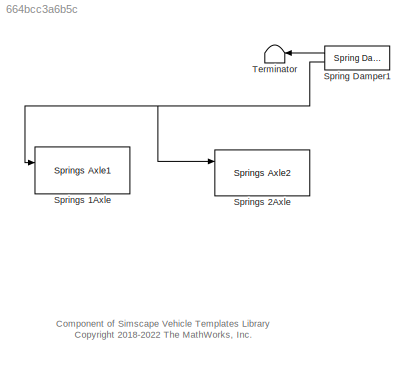
MODEL slx_664bcc3a6b5c
KIND library
CONFIG AbsTol = auto
CONFIG EnableMultiTasking = off
CONFIG FixedStep = auto
CONFIG MaxStep = auto
CONFIG MinStep = auto
CONFIG RelTol = 1e-3
CONFIG SampleTimeConstraint = Unconstrained
CONFIG SolverName = VariableStepAuto
CONFIG StartTime = 0.0
CONFIG StopTime = 10.0
BLOCK [Reference] Spring Damper1  REF=sm_car_lib/Inputs/Control Bus/Spring Damper  (lib defined in slx_05426f0848b6, slx_5dc2867fb1c9)
  Ports = [0, 2]
  SourceBlock = sm_car_lib/Inputs/Control Bus/Spring Damper
  SourceType = SubSystem
BLOCK [Reference] Springs 1Axle  REF=Springs_Axle1/Springs Axle1
  AttributesFormatString = %<ActiveVariant>
  Ports = [1, 1, 0, 0, 0, 1, 1]
  SourceBlock = Springs_Axle1/Springs Axle1
  SourceType = Variants for Springs
BLOCK [Reference] Springs 2Axle  REF=Springs_Axle2/Springs Axle2
  AttributesFormatString = %<ActiveVariant>
  Ports = [1, 1, 0, 0, 0, 2, 2]
  SourceBlock = Springs_Axle2/Springs Axle2
  SourceType = Variants for Springs
BLOCK [Terminator] Terminator
ANNOTATION (root): Component of Simscape Vehicle Templates Library <copyright redacted>
LINE Spring Damper1:1 -> Terminator:1
NET Spring Damper1:2 -> Springs 1Axle:1, Springs 2Axle:1
note: NET lines group one-source signal fan-out (src -> all destinations, sorted); 1:1 wires keep LINE
